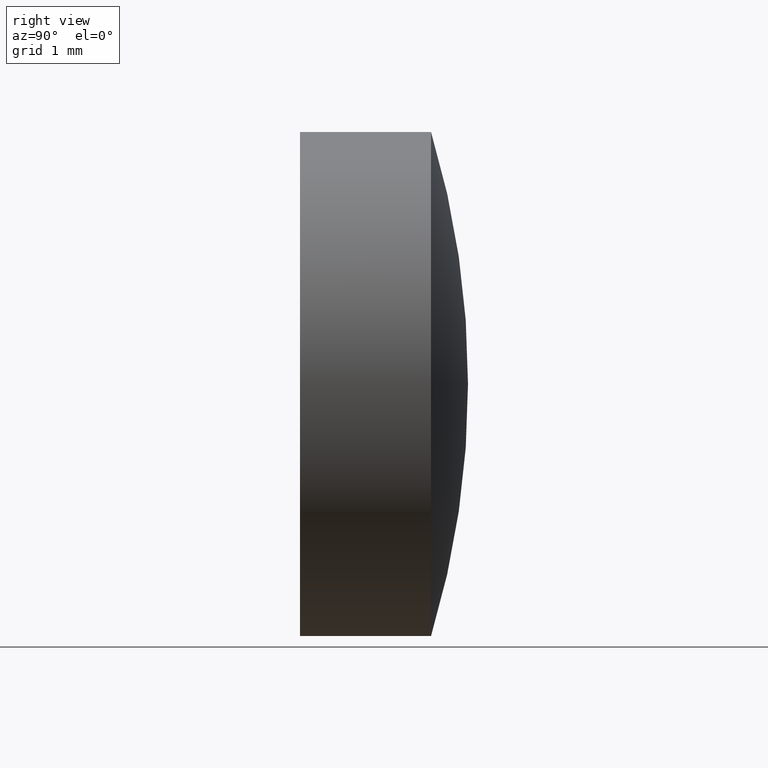
[diagram: clean part render]
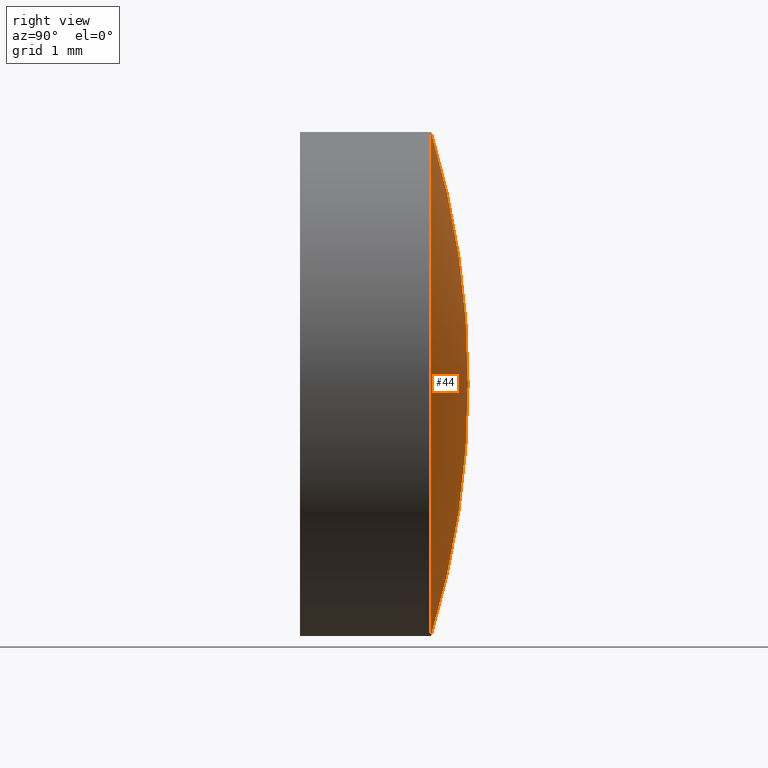
[diagram: same view with one face highlighted and labeled with its STEP entity id]
A machine part, right view. The second image highlights one B-rep face of the part: STEP entity #44.
In plain terms, the highlighted toroidal blend (fillet) surface has major radius 0.0128 mm and minor (blend) radius 10.36 mm.
Its self-contained STEP definition (entity closure, byte-faithful):
#11 = AXIS2_PLACEMENT_3D ( 'NONE', #133, #115, #183 ) ;
#17 = DIRECTION ( 'NONE',  ( -0.000000000000000000, 1.000000000000000000, -0.000000000000000000 ) ) ;
#18 = CARTESIAN_POINT ( 'NONE',  ( 0.000000000000000000, 1.559999999999999387, 2.999999999999999112 ) ) ;
#29 = CIRCLE ( 'NONE', #11, 10.35999999999999766 ) ;
#33 = CARTESIAN_POINT ( 'NONE',  ( 0.000000000000000000, -8.359992091227860911, 0.000000000000000000 ) ) ;
#43 = EDGE_CURVE ( 'NONE', #117, #165, #194, .T. ) ;
#44 = ADVANCED_FACE ( 'NONE', ( #170 ), #55, .T. ) ;
#46 = EDGE_CURVE ( 'NONE', #117, #98, #177, .T. ) ;
#53 = DIRECTION ( 'NONE',  ( -1.000000000000000000, 0.000000000000000000, 0.000000000000000000 ) ) ;
#55 = TOROIDAL_SURFACE ( 'NONE', #148, 0.01280115995324552884, 10.35999999999999766 ) ;
#62 = DIRECTION ( 'NONE',  ( -0.000000000000000000, 1.000000000000000000, -0.000000000000000000 ) ) ;
#65 = DIRECTION ( 'NONE',  ( 0.000000000000000000, 0.000000000000000000, 1.000000000000000000 ) ) ;
#68 = CARTESIAN_POINT ( 'NONE',  ( 0.000000000000000000, 2.000000000000000000, 0.000000000000000000 ) ) ;
#69 = EDGE_LOOP ( 'NONE', ( #166, #145, #193 ) ) ;
#87 = AXIS2_PLACEMENT_3D ( 'NONE', #200, #62, #65 ) ;
#98 = VERTEX_POINT ( 'NONE', #157 ) ;
#106 = DIRECTION ( 'NONE',  ( 0.000000000000000000, 0.000000000000000000, 1.000000000000000000 ) ) ;
#115 = DIRECTION ( 'NONE',  ( 1.000000000000000000, 0.000000000000000000, 1.224646799147353207E-16 ) ) ;
#117 = VERTEX_POINT ( 'NONE', #18 ) ;
#125 = EDGE_CURVE ( 'NONE', #98, #165, #29, .T. ) ;
#132 = AXIS2_PLACEMENT_3D ( 'NONE', #188, #53, #106 ) ;
#133 = CARTESIAN_POINT ( 'NONE',  ( 1.567689956211541805E-18, -8.359992091227860911, -0.01280115995324552884 ) ) ;
#145 = ORIENTED_EDGE ( 'NONE', *, *, #125, .T. ) ;
#148 = AXIS2_PLACEMENT_3D ( 'NONE', #33, #17, #175 ) ;
#157 = CARTESIAN_POINT ( 'NONE',  ( 3.673940397442058882E-16, 1.559999999999999387, -2.999999999999999112 ) ) ;
#165 = VERTEX_POINT ( 'NONE', #68 ) ;
#166 = ORIENTED_EDGE ( 'NONE', *, *, #46, .T. ) ;
#170 = FACE_OUTER_BOUND ( 'NONE', #69, .T. ) ;
#175 = DIRECTION ( 'NONE',  ( 0.000000000000000000, 0.000000000000000000, 1.000000000000000000 ) ) ;
#177 = CIRCLE ( 'NONE', #87, 3.000000000000000000 ) ;
#183 = DIRECTION ( 'NONE',  ( 1.224646799147353207E-16, 0.000000000000000000, -1.000000000000000000 ) ) ;
#188 = CARTESIAN_POINT ( 'NONE',  ( 0.000000000000000000, -8.359992091227860911, 0.01280115995324552884 ) ) ;
#193 = ORIENTED_EDGE ( 'NONE', *, *, #43, .F. ) ;
#194 = CIRCLE ( 'NONE', #132, 10.35999999999999766 ) ;
#200 = CARTESIAN_POINT ( 'NONE',  ( 0.000000000000000000, 1.559999999999999609, 0.000000000000000000 ) ) ;